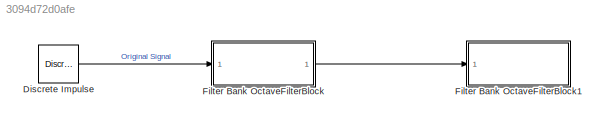
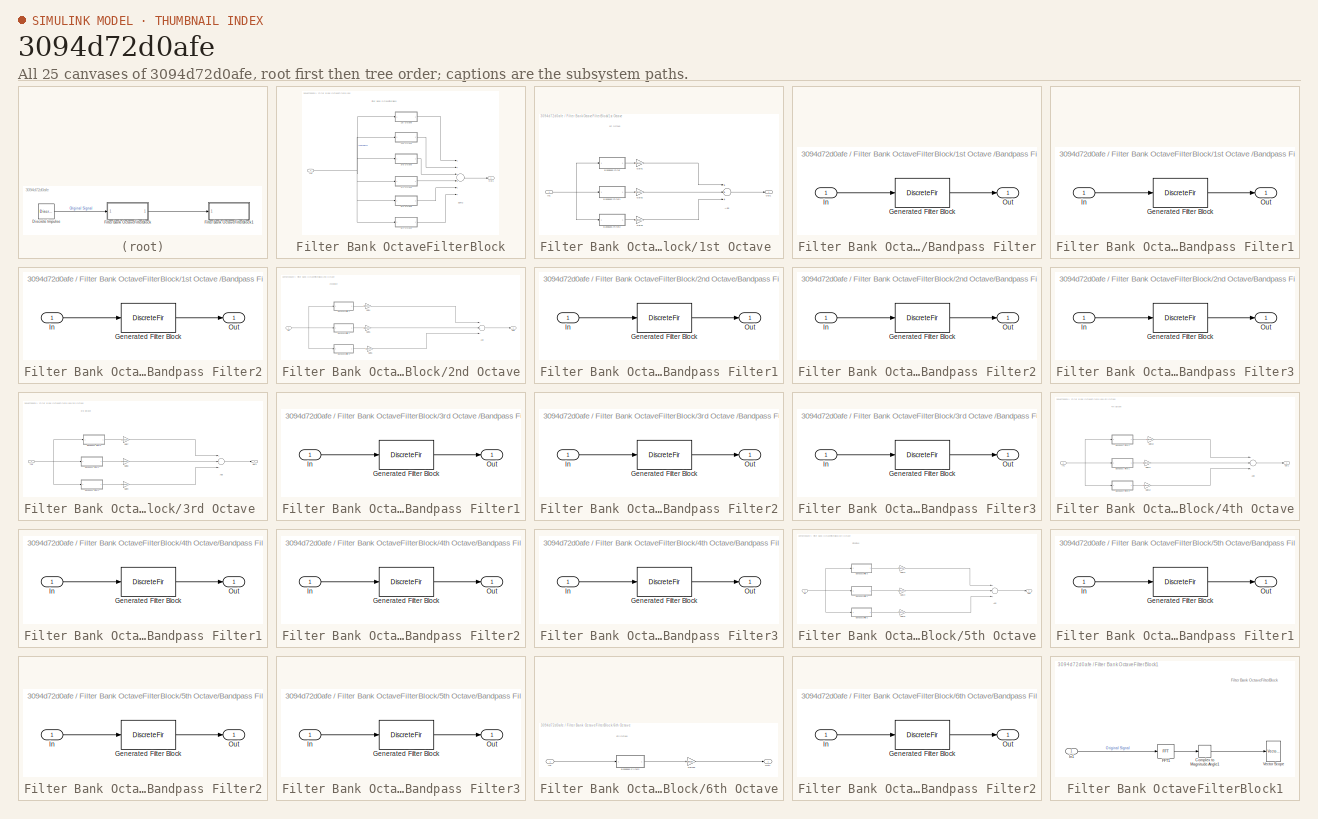
[diagram: thumbnail index - all 25 canvases of the model, root first then tree order]
MODEL slx_3094d72d0afe
KIND model
CONFIG AbsTol = auto
CONFIG EnableMultiTasking = off
CONFIG FixedStep = auto
CONFIG MaxStep = auto
CONFIG MinStep = auto
CONFIG RelTol = 1e-3
CONFIG SampleTimeConstraint = Unconstrained
CONFIG Solver = FixedStepDiscrete
CONFIG SolverName = FixedStepDiscrete
CONFIG StartTime = 0.0
CONFIG StopTime = 0.001
BLOCK [Reference] Discrete Impulse  REF=dspsrcs4/Discrete 
Impulse
  Ports = [0, 1]
  SourceBlock = dspsrcs4/Discrete \nImpulse
  SourceProductBaseCode = DS
  SourceProductName = DSP System Toolbox
  SourceType = Discrete Impulse
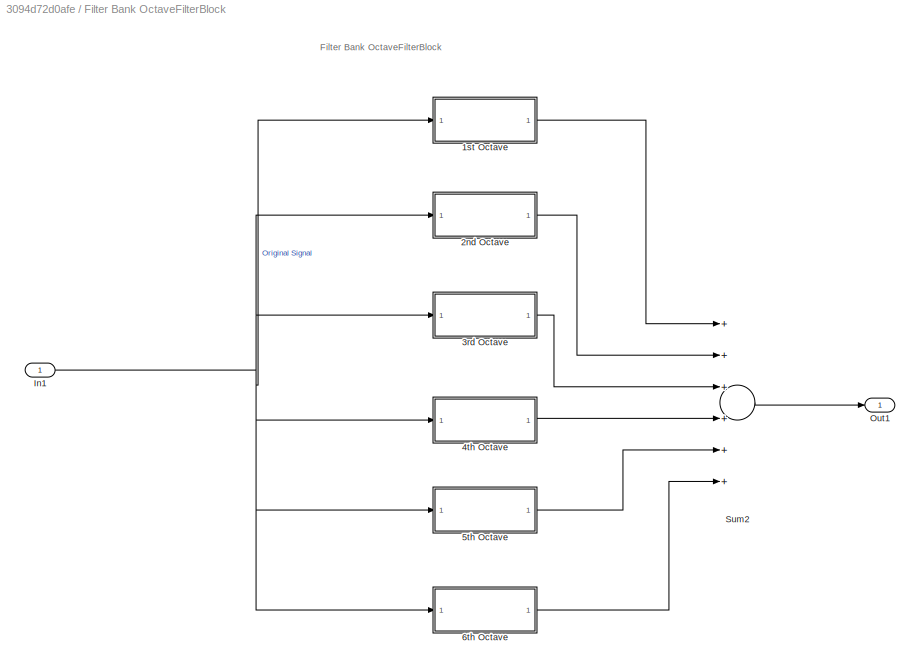
BLOCK [SubSystem] Filter Bank OctaveFilterBlock
  Ports = [1, 1]
  RequestExecContextInheritance = off
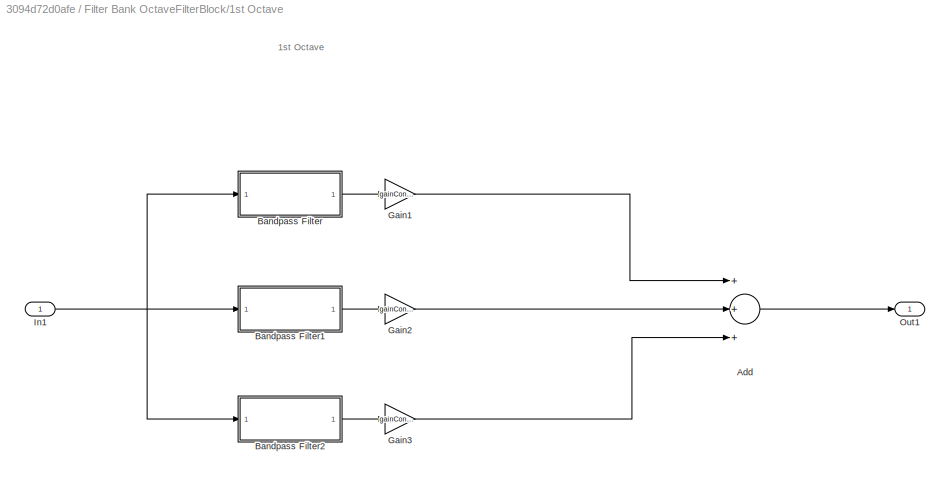
BLOCK [SubSystem] Filter Bank OctaveFilterBlock/1st Octave 
  Ports = [1, 1]
  RequestExecContextInheritance = off
BLOCK [Sum] Filter Bank OctaveFilterBlock/1st Octave /Add
  InputSameDT = off
  Inputs = +++
  OutDataTypeStr = Inherit: Inherit via internal rule
  Ports = [3, 1]
  SaturateOnIntegerOverflow = off
BLOCK [SubSystem] Filter Bank OctaveFilterBlock/1st Octave /Bandpass Filter
  CopyFcn = fdesignblkfcn(gcbh, {'CopyFcn'});
  DialogController = fdesignblkfcn
  InitFcn = fdesignblkfcn(gcbh, {'InitFcn'});
  Ports = [1, 1]
  RequestExecContextInheritance = off
  UserDataPersistent = on
BLOCK [DiscreteFir] Filter Bank OctaveFilterBlock/1st Octave /Bandpass Filter/Generated Filter Block
  Coefficients = [0.00069254263564703239 7.08332125616228079e-05 7.43338221660424489e-05 7.78019514310851305e-05 8.1313055894969587e-05 8.47676145299332306e-05 8.82427360820155573e-05 9.16321724960766058e-05 9.50132779449859897e-05 9.82780844645089513e-05 0.000101505416215626917 0.000104588272515063408 0.000107617215710334275 0.00011047625362861513 0.00011327190922524107 0.00011588720344087749 0.000118439063772244...<+18654ch>
  InputPortMap = u0
  InputProcessing = Columns as channels (frame based)
  OutputPortMap = o0
  Ports = [1, 1]
  Tag = BlockMethodSubSystem
BLOCK [Inport] Filter Bank OctaveFilterBlock/1st Octave /Bandpass Filter/In
  IconDisplay = Port number
BLOCK [Outport] Filter Bank OctaveFilterBlock/1st Octave /Bandpass Filter/Out
  IconDisplay = Port number
BLOCK [SubSystem] Filter Bank OctaveFilterBlock/1st Octave /Bandpass Filter1
  CopyFcn = fdesignblkfcn(gcbh, {'CopyFcn'});
  DialogController = fdesignblkfcn
  InitFcn = fdesignblkfcn(gcbh, {'InitFcn'});
  Ports = [1, 1]
  RequestExecContextInheritance = off
  UserDataPersistent = on
BLOCK [DiscreteFir] Filter Bank OctaveFilterBlock/1st Octave /Bandpass Filter1/Generated Filter Block
  Coefficients = [0.000700210960206121584 9.08999096462534753e-05 9.6493475997903649e-05 0.000102024349867572018 0.000107612579626240111 0.000113115900856586922 0.000118635157897549709 0.000123976371066557181 0.000129207962104145699 0.000134098413991073332 0.000138779649990945731 0.000143130230806684847 0.000147557040668118704 0.000152034630484060144 0.000156719067589813346 0.000158909825070414706 0.00016272600864...<+14679ch>
  InputPortMap = u0
  InputProcessing = Columns as channels (frame based)
  OutputPortMap = o0
  Ports = [1, 1]
  Tag = BlockMethodSubSystem
BLOCK [Inport] Filter Bank OctaveFilterBlock/1st Octave /Bandpass Filter1/In
  IconDisplay = Port number
BLOCK [Outport] Filter Bank OctaveFilterBlock/1st Octave /Bandpass Filter1/Out
  IconDisplay = Port number
BLOCK [SubSystem] Filter Bank OctaveFilterBlock/1st Octave /Bandpass Filter2
  CopyFcn = fdesignblkfcn(gcbh, {'CopyFcn'});
  DialogController = fdesignblkfcn
  InitFcn = fdesignblkfcn(gcbh, {'InitFcn'});
  Ports = [1, 1]
  RequestExecContextInheritance = off
  UserDataPersistent = on
BLOCK [DiscreteFir] Filter Bank OctaveFilterBlock/1st Octave /Bandpass Filter2/Generated Filter Block
  Coefficients = [0.000713660097633872091 0.000115378079070311895 0.000124420492702067165 0.000132921514305727926 0.000141825528954273874 0.000149953325599846326 0.000158294064529507727 0.000165704711463207925 0.000173323756779701372 0.000180030403143701659 0.000187013195553186145 0.000192811064822855397 0.000198418166362707149 0.000201884890277593231 0.000205783812253316437 0.000209381104477396698 0.0002105166716...<+11505ch>
  InputPortMap = u0
  InputProcessing = Columns as channels (frame based)
  OutputPortMap = o0
  Ports = [1, 1]
  Tag = BlockMethodSubSystem
BLOCK [Inport] Filter Bank OctaveFilterBlock/1st Octave /Bandpass Filter2/In
  IconDisplay = Port number
BLOCK [Outport] Filter Bank OctaveFilterBlock/1st Octave /Bandpass Filter2/Out
  IconDisplay = Port number
BLOCK [Gain] Filter Bank OctaveFilterBlock/1st Octave /Gain1
  Gain = gainConsts(1)
  OutDataTypeStr = Inherit: Inherit via internal rule
  ParamDataTypeStr = Inherit: Inherit via internal rule
  SaturateOnIntegerOverflow = off
BLOCK [Gain] Filter Bank OctaveFilterBlock/1st Octave /Gain2
  Gain = gainConsts(2)
  OutDataTypeStr = Inherit: Inherit via internal rule
  ParamDataTypeStr = Inherit: Inherit via internal rule
  SaturateOnIntegerOverflow = off
BLOCK [Gain] Filter Bank OctaveFilterBlock/1st Octave /Gain3
  Gain = gainConsts(3)
  OutDataTypeStr = Inherit: Inherit via internal rule
  ParamDataTypeStr = Inherit: Inherit via internal rule
  SaturateOnIntegerOverflow = off
BLOCK [Inport] Filter Bank OctaveFilterBlock/1st Octave /In1
  IconDisplay = Port number
BLOCK [Outport] Filter Bank OctaveFilterBlock/1st Octave /Out1
  IconDisplay = Port number
BLOCK [SubSystem] Filter Bank OctaveFilterBlock/2nd Octave
  Ports = [1, 1]
  RequestExecContextInheritance = off
BLOCK [Sum] Filter Bank OctaveFilterBlock/2nd Octave/Add
  InputSameDT = off
  Inputs = +++
  OutDataTypeStr = Inherit: Inherit via internal rule
  Ports = [3, 1]
  SaturateOnIntegerOverflow = off
BLOCK [SubSystem] Filter Bank OctaveFilterBlock/2nd Octave/Bandpass Filter1
  CopyFcn = fdesignblkfcn(gcbh, {'CopyFcn'});
  DialogController = fdesignblkfcn
  InitFcn = fdesignblkfcn(gcbh, {'InitFcn'});
  Ports = [1, 1]
  RequestExecContextInheritance = off
  UserDataPersistent = on
BLOCK [DiscreteFir] Filter Bank OctaveFilterBlock/2nd Octave/Bandpass Filter1/Generated Filter Block
  Coefficients = [0.000742134179395843971 0.000193440105430270923 0.000215971538485934848 0.000238094823972817142 0.000259596503362014626 0.00027989071616599015 0.000298678859460124843 0.000315340078940964279 0.000329544059457413739 0.000340645950367989426 0.000348345506686670553 0.000351991743241813592 0.000351332543792512528 0.000345703243024149301 0.000334876255142022104 0.000318164898069493837 0.00029536067892...<+7097ch>
  InputPortMap = u0
  InputProcessing = Columns as channels (frame based)
  OutputPortMap = o0
  Ports = [1, 1]
  Tag = BlockMethodSubSystem
BLOCK [Inport] Filter Bank OctaveFilterBlock/2nd Octave/Bandpass Filter1/In
  IconDisplay = Port number
BLOCK [Outport] Filter Bank OctaveFilterBlock/2nd Octave/Bandpass Filter1/Out
  IconDisplay = Port number
BLOCK [SubSystem] Filter Bank OctaveFilterBlock/2nd Octave/Bandpass Filter2
  CopyFcn = fdesignblkfcn(gcbh, {'CopyFcn'});
  DialogController = fdesignblkfcn
  InitFcn = fdesignblkfcn(gcbh, {'InitFcn'});
  Ports = [1, 1]
  RequestExecContextInheritance = off
  UserDataPersistent = on
BLOCK [DiscreteFir] Filter Bank OctaveFilterBlock/2nd Octave/Bandpass Filter2/Generated Filter Block
  Coefficients = [0.000725848166867236683 0.000149303145153493842 0.000163320505206527086 0.000177268500386278132 0.000190919069130600746 0.000204180363752326152 0.000216798059367720762 0.000228666516954461588 0.000239538083378910353 0.000249300727901250981 0.000257722298461788646 0.000264689509143923175 0.000269955982745259248 0.000273401873404388357 0.000274733767915407139 0.000273827996112659458 0.0002703804252...<+9087ch>
  InputPortMap = u0
  InputProcessing = Columns as channels (frame based)
  OutputPortMap = o0
  Ports = [1, 1]
  Tag = BlockMethodSubSystem
BLOCK [Inport] Filter Bank OctaveFilterBlock/2nd Octave/Bandpass Filter2/In
  IconDisplay = Port number
BLOCK [Outport] Filter Bank OctaveFilterBlock/2nd Octave/Bandpass Filter2/Out
  IconDisplay = Port number
BLOCK [SubSystem] Filter Bank OctaveFilterBlock/2nd Octave/Bandpass Filter3
  CopyFcn = fdesignblkfcn(gcbh, {'CopyFcn'});
  DialogController = fdesignblkfcn
  InitFcn = fdesignblkfcn(gcbh, {'InitFcn'});
  Ports = [1, 1]
  RequestExecContextInheritance = off
  UserDataPersistent = on
BLOCK [DiscreteFir] Filter Bank OctaveFilterBlock/2nd Octave/Bandpass Filter3/Generated Filter Block
  Coefficients = [0.000771480794195079336 0.00025192787376402976 0.000287358119804378748 0.000321543796994596927 0.000353629791679158588 0.000382362971119008582 0.000406738534979427695 0.000425425218057969685 0.000437351911760079106 0.000441133521365470998 0.000435706853850912398 0.000419676264177398556 0.00039211231972832944 0.000351789318209205597 0.000298109072813777917 0.000230228642914315012 0.000147996680517...<+5535ch>
  InputPortMap = u0
  InputProcessing = Columns as channels (frame based)
  OutputPortMap = o0
  Ports = [1, 1]
  Tag = BlockMethodSubSystem
BLOCK [Inport] Filter Bank OctaveFilterBlock/2nd Octave/Bandpass Filter3/In
  IconDisplay = Port number
BLOCK [Outport] Filter Bank OctaveFilterBlock/2nd Octave/Bandpass Filter3/Out
  IconDisplay = Port number
BLOCK [Gain] Filter Bank OctaveFilterBlock/2nd Octave/Gain4
  Gain = gainConsts(4)
  OutDataTypeStr = Inherit: Inherit via internal rule
  ParamDataTypeStr = Inherit: Inherit via internal rule
  SaturateOnIntegerOverflow = off
BLOCK [Gain] Filter Bank OctaveFilterBlock/2nd Octave/Gain5
  Gain = gainConsts(5)
  OutDataTypeStr = Inherit: Inherit via internal rule
  ParamDataTypeStr = Inherit: Inherit via internal rule
  SaturateOnIntegerOverflow = off
BLOCK [Gain] Filter Bank OctaveFilterBlock/2nd Octave/Gain6
  Gain = gainConsts(6)
  OutDataTypeStr = Inherit: Inherit via internal rule
  ParamDataTypeStr = Inherit: Inherit via internal rule
  SaturateOnIntegerOverflow = off
BLOCK [Inport] Filter Bank OctaveFilterBlock/2nd Octave/In1
  IconDisplay = Port number
BLOCK [Outport] Filter Bank OctaveFilterBlock/2nd Octave/Out1
  IconDisplay = Port number
BLOCK [SubSystem] Filter Bank OctaveFilterBlock/3rd Octave 
  Ports = [1, 1]
  RequestExecContextInheritance = off
BLOCK [Sum] Filter Bank OctaveFilterBlock/3rd Octave /Add
  InputSameDT = off
  Inputs = +++
  OutDataTypeStr = Inherit: Inherit via internal rule
  Ports = [3, 1]
  SaturateOnIntegerOverflow = off
BLOCK [SubSystem] Filter Bank OctaveFilterBlock/3rd Octave /Bandpass Filter1
  CopyFcn = fdesignblkfcn(gcbh, {'CopyFcn'});
  DialogController = fdesignblkfcn
  InitFcn = fdesignblkfcn(gcbh, {'InitFcn'});
  Ports = [1, 1]
  RequestExecContextInheritance = off
  UserDataPersistent = on
BLOCK [DiscreteFir] Filter Bank OctaveFilterBlock/3rd Octave /Bandpass Filter1/Generated Filter Block
  Coefficients = [0.000844529805605297537 0.000434474145270160228 0.000521970330597161048 0.00059981661422784131 0.000661211427830133824 0.000698200171238722153 0.000704092007714931687 0.000670377161148503716 0.000590133932091154866 0.000456798596009998638 0.000268376310929874153 1.95106375506972751e-05 -0.000288081880362676078 -0.000650533214135858365 -0.00106342815011038457 -0.00151566549996151037 -0.00199548134...<+3323ch>
  InputPortMap = u0
  InputProcessing = Columns as channels (frame based)
  OutputPortMap = o0
  Ports = [1, 1]
  Tag = BlockMethodSubSystem
BLOCK [Inport] Filter Bank OctaveFilterBlock/3rd Octave /Bandpass Filter1/In
  IconDisplay = Port number
BLOCK [Outport] Filter Bank OctaveFilterBlock/3rd Octave /Bandpass Filter1/Out
  IconDisplay = Port number
BLOCK [SubSystem] Filter Bank OctaveFilterBlock/3rd Octave /Bandpass Filter2
  CopyFcn = fdesignblkfcn(gcbh, {'CopyFcn'});
  DialogController = fdesignblkfcn
  InitFcn = fdesignblkfcn(gcbh, {'InitFcn'});
  Ports = [1, 1]
  RequestExecContextInheritance = off
  UserDataPersistent = on
BLOCK [DiscreteFir] Filter Bank OctaveFilterBlock/3rd Octave /Bandpass Filter2/Generated Filter Block
  Coefficients = [0.000613569567036898237 0.000297548180612830916 0.000345269266420602638 0.000378712193219345433 0.00039305365853324625 0.000384583668061130315 0.000351055855389396378 0.000292085770583024832 0.000209617251577713898 0.000107853452572361313 -6.67460616390183177e-06 -0.000125624195834608501 -0.000239441061853404736 -0.000338342328646290731 -0.000413169281211663345 -0.00045641312325707525 -0.00046304...<+3377ch>
  InputPortMap = u0
  InputProcessing = Columns as channels (frame based)
  OutputPortMap = o0
  Ports = [1, 1]
  Tag = BlockMethodSubSystem
BLOCK [Inport] Filter Bank OctaveFilterBlock/3rd Octave /Bandpass Filter2/In
  IconDisplay = Port number
BLOCK [Outport] Filter Bank OctaveFilterBlock/3rd Octave /Bandpass Filter2/Out
  IconDisplay = Port number
BLOCK [SubSystem] Filter Bank OctaveFilterBlock/3rd Octave /Bandpass Filter3
  CopyFcn = fdesignblkfcn(gcbh, {'CopyFcn'});
  DialogController = fdesignblkfcn
  InitFcn = fdesignblkfcn(gcbh, {'InitFcn'});
  Ports = [1, 1]
  RequestExecContextInheritance = off
  UserDataPersistent = on
BLOCK [DiscreteFir] Filter Bank OctaveFilterBlock/3rd Octave /Bandpass Filter3/Generated Filter Block
  Coefficients = [0.000804290502684113342 0.000329968746955946947 0.000385587548959871165 0.000437931361239749992 0.000484183216200477886 0.000521549418801320504 0.000546845896578521183 0.000557060515818461142 0.00054892668621296496 0.000519638016259670586 0.000466411798081320828 0.000387123745056590655 0.000279856806443186357 0.000143486795032023249 -2.26768397719826699e-05 -0.000218222801616095726 -0.00044198809...<+4293ch>
  InputPortMap = u0
  InputProcessing = Columns as channels (frame based)
  OutputPortMap = o0
  Ports = [1, 1]
  Tag = BlockMethodSubSystem
BLOCK [Inport] Filter Bank OctaveFilterBlock/3rd Octave /Bandpass Filter3/In
  IconDisplay = Port number
BLOCK [Outport] Filter Bank OctaveFilterBlock/3rd Octave /Bandpass Filter3/Out
  IconDisplay = Port number
BLOCK [Gain] Filter Bank OctaveFilterBlock/3rd Octave /Gain7
  Gain = gainConsts(7)
  OutDataTypeStr = Inherit: Inherit via internal rule
  ParamDataTypeStr = Inherit: Inherit via internal rule
  SaturateOnIntegerOverflow = off
BLOCK [Gain] Filter Bank OctaveFilterBlock/3rd Octave /Gain8
  Gain = gainConsts(8)
  OutDataTypeStr = Inherit: Inherit via internal rule
  ParamDataTypeStr = Inherit: Inherit via internal rule
  SaturateOnIntegerOverflow = off
BLOCK [Gain] Filter Bank OctaveFilterBlock/3rd Octave /Gain9
  Gain = gainConsts(9)
  OutDataTypeStr = Inherit: Inherit via internal rule
  ParamDataTypeStr = Inherit: Inherit via internal rule
  SaturateOnIntegerOverflow = off
BLOCK [Inport] Filter Bank OctaveFilterBlock/3rd Octave /In1
  IconDisplay = Port number
BLOCK [Outport] Filter Bank OctaveFilterBlock/3rd Octave /Out1
  IconDisplay = Port number
BLOCK [SubSystem] Filter Bank OctaveFilterBlock/4th Octave
  Ports = [1, 1]
  RequestExecContextInheritance = off
BLOCK [Sum] Filter Bank OctaveFilterBlock/4th Octave/Add
  InputSameDT = off
  Inputs = +++
  OutDataTypeStr = Inherit: Inherit via internal rule
  Ports = [3, 1]
  SaturateOnIntegerOverflow = off
BLOCK [SubSystem] Filter Bank OctaveFilterBlock/4th Octave/Bandpass Filter1
  CopyFcn = fdesignblkfcn(gcbh, {'CopyFcn'});
  DialogController = fdesignblkfcn
  InitFcn = fdesignblkfcn(gcbh, {'InitFcn'});
  Ports = [1, 1]
  RequestExecContextInheritance = off
  UserDataPersistent = on
BLOCK [DiscreteFir] Filter Bank OctaveFilterBlock/4th Octave/Bandpass Filter1/Generated Filter Block
  Coefficients = [0.000710536329578594235 0.000480231368416294668 0.000540923536368230007 0.000524201576661302224 0.00041851431816842925 0.000231560901313191141 -8.35020160617078832e-06 -0.000254900124502930551 -0.000453094722168828883 -0.000552258274331759807 -0.000521453451729783309 -0.000362971630165078558 -0.000121184341494637985 0.000117784174182406003 0.000236188702439771683 0.000106391569379987689 -0.000378...<+1959ch>
  InputPortMap = u0
  InputProcessing = Columns as channels (frame based)
  OutputPortMap = o0
  Ports = [1, 1]
  Tag = BlockMethodSubSystem
BLOCK [Inport] Filter Bank OctaveFilterBlock/4th Octave/Bandpass Filter1/In
  IconDisplay = Port number
BLOCK [Outport] Filter Bank OctaveFilterBlock/4th Octave/Bandpass Filter1/Out
  IconDisplay = Port number
BLOCK [SubSystem] Filter Bank OctaveFilterBlock/4th Octave/Bandpass Filter2
  CopyFcn = fdesignblkfcn(gcbh, {'CopyFcn'});
  DialogController = fdesignblkfcn
  InitFcn = fdesignblkfcn(gcbh, {'InitFcn'});
  Ports = [1, 1]
  RequestExecContextInheritance = off
  UserDataPersistent = on
BLOCK [DiscreteFir] Filter Bank OctaveFilterBlock/4th Octave/Bandpass Filter2/Generated Filter Block
  Coefficients = [0.000660063968007304318 0.000362664224633989587 0.000413631548370213087 0.000430536325834472277 0.000405431575467652197 0.000335674548340531779 0.000224709284416333387 8.28061432437832422e-05 -7.39506217473550118e-05 -0.000224860365294900298 -0.000347996935854789761 -0.000422872953299833576 -0.000435264840810774126 -0.000380142447306632144 -0.00026540706276369561 -0.000112247838753902607 4.466708...<+2561ch>
  InputPortMap = u0
  InputProcessing = Columns as channels (frame based)
  OutputPortMap = o0
  Ports = [1, 1]
  Tag = BlockMethodSubSystem
BLOCK [Inport] Filter Bank OctaveFilterBlock/4th Octave/Bandpass Filter2/In
  IconDisplay = Port number
BLOCK [Outport] Filter Bank OctaveFilterBlock/4th Octave/Bandpass Filter2/Out
  IconDisplay = Port number
BLOCK [SubSystem] Filter Bank OctaveFilterBlock/4th Octave/Bandpass Filter3
  CopyFcn = fdesignblkfcn(gcbh, {'CopyFcn'});
  DialogController = fdesignblkfcn
  InitFcn = fdesignblkfcn(gcbh, {'InitFcn'});
  Ports = [1, 1]
  RequestExecContextInheritance = off
  UserDataPersistent = on
BLOCK [DiscreteFir] Filter Bank OctaveFilterBlock/4th Octave/Bandpass Filter3/Generated Filter Block
  Coefficients = [0.000787331502509106213 0.000712646524578959312 0.00080733263120094656 0.000716818685482715871 0.000421733975543355823 -2.62032712578797442e-05 -0.000508755252751254446 -0.000871717056666874144 -0.000981365149126111084 -0.000786668501354213594 -0.000368661076257909709 5.08089081615513169e-05 0.000152109336404681906 -0.000380441370676968475 -0.00172796032965351299 -0.00380805836267096706 -0.006202...<+1501ch>
  InputPortMap = u0
  InputProcessing = Columns as channels (frame based)
  OutputPortMap = o0
  Ports = [1, 1]
  Tag = BlockMethodSubSystem
BLOCK [Inport] Filter Bank OctaveFilterBlock/4th Octave/Bandpass Filter3/In
  IconDisplay = Port number
BLOCK [Outport] Filter Bank OctaveFilterBlock/4th Octave/Bandpass Filter3/Out
  IconDisplay = Port number
BLOCK [Gain] Filter Bank OctaveFilterBlock/4th Octave/Gain10
  Gain = gainConsts(10)
  OutDataTypeStr = Inherit: Inherit via internal rule
  ParamDataTypeStr = Inherit: Inherit via internal rule
  SaturateOnIntegerOverflow = off
BLOCK [Gain] Filter Bank OctaveFilterBlock/4th Octave/Gain11
  Gain = gainConsts(11)
  OutDataTypeStr = Inherit: Inherit via internal rule
  ParamDataTypeStr = Inherit: Inherit via internal rule
  SaturateOnIntegerOverflow = off
BLOCK [Gain] Filter Bank OctaveFilterBlock/4th Octave/Gain12
  Gain = gainConsts(12)
  OutDataTypeStr = Inherit: Inherit via internal rule
  ParamDataTypeStr = Inherit: Inherit via internal rule
  SaturateOnIntegerOverflow = off
BLOCK [Inport] Filter Bank OctaveFilterBlock/4th Octave/In1
  IconDisplay = Port number
BLOCK [Outport] Filter Bank OctaveFilterBlock/4th Octave/Out1
  IconDisplay = Port number
BLOCK [SubSystem] Filter Bank OctaveFilterBlock/5th Octave
  Ports = [1, 1]
  RequestExecContextInheritance = off
BLOCK [Sum] Filter Bank OctaveFilterBlock/5th Octave/Add
  InputSameDT = off
  Inputs = +++
  OutDataTypeStr = Inherit: Inherit via internal rule
  Ports = [3, 1]
  SaturateOnIntegerOverflow = off
BLOCK [SubSystem] Filter Bank OctaveFilterBlock/5th Octave/Bandpass Filter1
  CopyFcn = fdesignblkfcn(gcbh, {'CopyFcn'});
  DialogController = fdesignblkfcn
  InitFcn = fdesignblkfcn(gcbh, {'InitFcn'});
  Ports = [1, 1]
  RequestExecContextInheritance = off
  UserDataPersistent = on
BLOCK [DiscreteFir] Filter Bank OctaveFilterBlock/5th Octave/Bandpass Filter1/Generated Filter Block
  Coefficients = [0.00104091797483246533 0.00117292590140649351 0.000889197178867677713 -5.47558220565934445e-05 -0.00105581072468561633 -0.00126993734640972193 -0.000460463792976197658 0.00036483088903188453 -0.000689227236600041255 -0.0048545614468881405 -0.0108429377827189734 -0.0142790649112275684 -0.00961648174968800055 0.00589001005015481714 0.0284539945020862994 0.047307034740027322 0.0491107476093929143 0....<+774ch>
  InputPortMap = u0
  InputProcessing = Columns as channels (frame based)
  OutputPortMap = o0
  Ports = [1, 1]
  Tag = BlockMethodSubSystem
BLOCK [Inport] Filter Bank OctaveFilterBlock/5th Octave/Bandpass Filter1/In
  IconDisplay = Port number
BLOCK [Outport] Filter Bank OctaveFilterBlock/5th Octave/Bandpass Filter1/Out
  IconDisplay = Port number
BLOCK [SubSystem] Filter Bank OctaveFilterBlock/5th Octave/Bandpass Filter2
  CopyFcn = fdesignblkfcn(gcbh, {'CopyFcn'});
  DialogController = fdesignblkfcn
  InitFcn = fdesignblkfcn(gcbh, {'InitFcn'});
  Ports = [1, 1]
  RequestExecContextInheritance = off
  UserDataPersistent = on
BLOCK [DiscreteFir] Filter Bank OctaveFilterBlock/5th Octave/Bandpass Filter2/Generated Filter Block
  Coefficients = [0.00135561766927554269 0.00183641062578695819 0.000895657920912027632 -0.00128416145068868085 -0.00248790199441557966 -0.00122421320096873345 0.000195133979586037236 -0.00307163487481588093 -0.0117559139584707019 -0.0170872868500709617 -0.0056427404214003489 0.025640733265371949 0.057950634843356684 0.0588079105062277938 0.00991002804479382444 -0.068005754341698782 -0.120597627195966339 -0.099353...<+538ch>
  InputPortMap = u0
  InputProcessing = Columns as channels (frame based)
  OutputPortMap = o0
  Ports = [1, 1]
  Tag = BlockMethodSubSystem
BLOCK [Inport] Filter Bank OctaveFilterBlock/5th Octave/Bandpass Filter2/In
  IconDisplay = Port number
BLOCK [Outport] Filter Bank OctaveFilterBlock/5th Octave/Bandpass Filter2/Out
  IconDisplay = Port number
BLOCK [SubSystem] Filter Bank OctaveFilterBlock/5th Octave/Bandpass Filter3
  CopyFcn = fdesignblkfcn(gcbh, {'CopyFcn'});
  DialogController = fdesignblkfcn
  InitFcn = fdesignblkfcn(gcbh, {'InitFcn'});
  Ports = [1, 1]
  RequestExecContextInheritance = off
  UserDataPersistent = on
BLOCK [DiscreteFir] Filter Bank OctaveFilterBlock/5th Octave/Bandpass Filter3/Generated Filter Block
  Coefficients = [0.000884582308095480194 0.000870780307095067076 0.000848012585339726109 0.000462698932146210962 -0.000171370288053247658 -0.000762173546555128516 -0.000971002272625588877 -0.000645084665005441534 -6.26625629828922968e-06 0.000322456926781320406 -0.000441945506372254252 -0.00278782244015426083 -0.00641748539213879421 -0.00999905474017598675 -0.0113917109482768175 -0.00840857719289226507 9.01672573...<+1101ch>
  InputPortMap = u0
  InputProcessing = Columns as channels (frame based)
  OutputPortMap = o0
  Ports = [1, 1]
  Tag = BlockMethodSubSystem
BLOCK [Inport] Filter Bank OctaveFilterBlock/5th Octave/Bandpass Filter3/In
  IconDisplay = Port number
BLOCK [Outport] Filter Bank OctaveFilterBlock/5th Octave/Bandpass Filter3/Out
  IconDisplay = Port number
BLOCK [Gain] Filter Bank OctaveFilterBlock/5th Octave/Gain13 
  Gain = gainConsts(13)
  OutDataTypeStr = Inherit: Inherit via internal rule
  ParamDataTypeStr = Inherit: Inherit via internal rule
  SaturateOnIntegerOverflow = off
BLOCK [Gain] Filter Bank OctaveFilterBlock/5th Octave/Gain14
  Gain = gainConsts(14)
  OutDataTypeStr = Inherit: Inherit via internal rule
  ParamDataTypeStr = Inherit: Inherit via internal rule
  SaturateOnIntegerOverflow = off
BLOCK [Gain] Filter Bank OctaveFilterBlock/5th Octave/Gain15
  Gain = gainConsts(15)
  OutDataTypeStr = Inherit: Inherit via internal rule
  ParamDataTypeStr = Inherit: Inherit via internal rule
  SaturateOnIntegerOverflow = off
BLOCK [Inport] Filter Bank OctaveFilterBlock/5th Octave/In1
  IconDisplay = Port number
BLOCK [Outport] Filter Bank OctaveFilterBlock/5th Octave/Out1
  IconDisplay = Port number
BLOCK [SubSystem] Filter Bank OctaveFilterBlock/6th Octave
  Ports = [1, 1]
  RequestExecContextInheritance = off
BLOCK [SubSystem] Filter Bank OctaveFilterBlock/6th Octave/Bandpass Filter2
  CopyFcn = fdesignblkfcn(gcbh, {'CopyFcn'});
  DialogController = fdesignblkfcn
  InitFcn = fdesignblkfcn(gcbh, {'InitFcn'});
  Ports = [1, 1]
  RequestExecContextInheritance = off
  UserDataPersistent = on
BLOCK [DiscreteFir] Filter Bank OctaveFilterBlock/6th Octave/Bandpass Filter2/Generated Filter Block
  Coefficients = [0.00200608391046752307 0.00296182112284697078 -2.76446930316827056e-05 -0.00436306198413185988 -0.00343045138005433755 8.10391022939021302e-05 -0.00608795834538759014 -0.0189346990499320855 -0.00866814362833929174 0.0401795757156851105 0.0800848562720484908 0.0366037142511605532 -0.0830799022041095736 -0.157075771006374071 -0.0772702686389817872 0.100224558916550924 0.193113651985695661 0.1002245...<+360ch>
  InputPortMap = u0
  InputProcessing = Columns as channels (frame based)
  OutputPortMap = o0
  Ports = [1, 1]
  Tag = BlockMethodSubSystem
BLOCK [Inport] Filter Bank OctaveFilterBlock/6th Octave/Bandpass Filter2/In
  IconDisplay = Port number
BLOCK [Outport] Filter Bank OctaveFilterBlock/6th Octave/Bandpass Filter2/Out
  IconDisplay = Port number
BLOCK [Gain] Filter Bank OctaveFilterBlock/6th Octave/Gain16
  Gain = gainConsts(16)
  OutDataTypeStr = Inherit: Inherit via internal rule
  ParamDataTypeStr = Inherit: Inherit via internal rule
  SaturateOnIntegerOverflow = off
BLOCK [Inport] Filter Bank OctaveFilterBlock/6th Octave/In1
  IconDisplay = Port number
BLOCK [Outport] Filter Bank OctaveFilterBlock/6th Octave/Out1
  IconDisplay = Port number
BLOCK [Inport] Filter Bank OctaveFilterBlock/In1
  IconDisplay = Port number
BLOCK [Outport] Filter Bank OctaveFilterBlock/Out1
  IconDisplay = Port number
BLOCK [Sum] Filter Bank OctaveFilterBlock/Sum2
  InputSameDT = off
  Inputs = ++++++
  OutDataTypeStr = Inherit: Inherit via internal rule
  Ports = [6, 1]
  SaturateOnIntegerOverflow = off
BLOCK [SubSystem] Filter Bank OctaveFilterBlock1
  Ports = [1]
  RequestExecContextInheritance = off
BLOCK [ComplexToMagnitudeAngle] Filter Bank OctaveFilterBlock1/Complex to Magnitude-Angle1
  Output = Magnitude
  Ports = [1, 1]
BLOCK [Reference] Filter Bank OctaveFilterBlock1/FFT1  REF=dspxfrm3/FFT
  Ports = [1, 1]
  SourceBlock = dspxfrm3/FFT
  SourceProductBaseCode = DS
  SourceProductName = DSP System Toolbox
  SourceType = FFT
BLOCK [Inport] Filter Bank OctaveFilterBlock1/In1
  IconDisplay = Port number
BLOCK [Reference] Filter Bank OctaveFilterBlock1/Vector Scope  REF=dspobslib/Vector
Scope
  Ports = [1]
  SourceBlock = dspobslib/Vector\nScope
  SourceProductBaseCode = DS
  SourceProductName = DSP System Toolbox
  SourceType = Vector Scope
ANNOTATION Filter Bank OctaveFilterBlock: Filter Bank OctaveFilterBlock
ANNOTATION Filter Bank OctaveFilterBlock/1st Octave : 1st Octave
ANNOTATION Filter Bank OctaveFilterBlock/2nd Octave: 2nd Octave
ANNOTATION Filter Bank OctaveFilterBlock/3rd Octave : 3rd Octave
ANNOTATION Filter Bank OctaveFilterBlock/4th Octave: 4th Octave
ANNOTATION Filter Bank OctaveFilterBlock/5th Octave: 5th Octave
ANNOTATION Filter Bank OctaveFilterBlock/6th Octave: 6th Octave
ANNOTATION Filter Bank OctaveFilterBlock1: Filter Bank OctaveFilterBlock
LINE Discrete Impulse:1 -> Filter Bank OctaveFilterBlock:1
LINE Filter Bank OctaveFilterBlock/1st Octave /Add:1 -> Filter Bank OctaveFilterBlock/1st Octave /Out1:1
LINE Filter Bank OctaveFilterBlock/1st Octave /Bandpass Filter1:1 -> Filter Bank OctaveFilterBlock/1st Octave /Gain2:1
LINE Filter Bank OctaveFilterBlock/1st Octave /Bandpass Filter2:1 -> Filter Bank OctaveFilterBlock/1st Octave /Gain3:1
LINE Filter Bank OctaveFilterBlock/1st Octave /Bandpass Filter:1 -> Filter Bank OctaveFilterBlock/1st Octave /Gain1:1
LINE Filter Bank OctaveFilterBlock/1st Octave /Gain1:1 -> Filter Bank OctaveFilterBlock/1st Octave /Add:1
LINE Filter Bank OctaveFilterBlock/1st Octave /Gain2:1 -> Filter Bank OctaveFilterBlock/1st Octave /Add:2
LINE Filter Bank OctaveFilterBlock/1st Octave /Gain3:1 -> Filter Bank OctaveFilterBlock/1st Octave /Add:3
NET Filter Bank OctaveFilterBlock/1st Octave /In1:1 -> Filter Bank OctaveFilterBlock/1st Octave /Bandpass Filter1:1, Filter Bank OctaveFilterBlock/1st Octave /Bandpass Filter2:1, Filter Bank OctaveFilterBlock/1st Octave /Bandpass Filter:1
LINE Filter Bank OctaveFilterBlock/1st Octave :1 -> Filter Bank OctaveFilterBlock/Sum2:1
LINE Filter Bank OctaveFilterBlock/2nd Octave/Add:1 -> Filter Bank OctaveFilterBlock/2nd Octave/Out1:1
LINE Filter Bank OctaveFilterBlock/2nd Octave/Bandpass Filter1:1 -> Filter Bank OctaveFilterBlock/2nd Octave/Gain5:1
LINE Filter Bank OctaveFilterBlock/2nd Octave/Bandpass Filter2:1 -> Filter Bank OctaveFilterBlock/2nd Octave/Gain4:1
LINE Filter Bank OctaveFilterBlock/2nd Octave/Bandpass Filter3:1 -> Filter Bank OctaveFilterBlock/2nd Octave/Gain6:1
LINE Filter Bank OctaveFilterBlock/2nd Octave/Gain4:1 -> Filter Bank OctaveFilterBlock/2nd Octave/Add:1
LINE Filter Bank OctaveFilterBlock/2nd Octave/Gain5:1 -> Filter Bank OctaveFilterBlock/2nd Octave/Add:2
LINE Filter Bank OctaveFilterBlock/2nd Octave/Gain6:1 -> Filter Bank OctaveFilterBlock/2nd Octave/Add:3
NET Filter Bank OctaveFilterBlock/2nd Octave/In1:1 -> Filter Bank OctaveFilterBlock/2nd Octave/Bandpass Filter1:1, Filter Bank OctaveFilterBlock/2nd Octave/Bandpass Filter2:1, Filter Bank OctaveFilterBlock/2nd Octave/Bandpass Filter3:1
LINE Filter Bank OctaveFilterBlock/2nd Octave:1 -> Filter Bank OctaveFilterBlock/Sum2:2
LINE Filter Bank OctaveFilterBlock/3rd Octave /Add:1 -> Filter Bank OctaveFilterBlock/3rd Octave /Out1:1
LINE Filter Bank OctaveFilterBlock/3rd Octave /Bandpass Filter1:1 -> Filter Bank OctaveFilterBlock/3rd Octave /Gain8:1
LINE Filter Bank OctaveFilterBlock/3rd Octave /Bandpass Filter2:1 -> Filter Bank OctaveFilterBlock/3rd Octave /Gain9:1
LINE Filter Bank OctaveFilterBlock/3rd Octave /Bandpass Filter3:1 -> Filter Bank OctaveFilterBlock/3rd Octave /Gain7:1
LINE Filter Bank OctaveFilterBlock/3rd Octave /Gain7:1 -> Filter Bank OctaveFilterBlock/3rd Octave /Add:1
LINE Filter Bank OctaveFilterBlock/3rd Octave /Gain8:1 -> Filter Bank OctaveFilterBlock/3rd Octave /Add:2
LINE Filter Bank OctaveFilterBlock/3rd Octave /Gain9:1 -> Filter Bank OctaveFilterBlock/3rd Octave /Add:3
NET Filter Bank OctaveFilterBlock/3rd Octave /In1:1 -> Filter Bank OctaveFilterBlock/3rd Octave /Bandpass Filter1:1, Filter Bank OctaveFilterBlock/3rd Octave /Bandpass Filter2:1, Filter Bank OctaveFilterBlock/3rd Octave /Bandpass Filter3:1
LINE Filter Bank OctaveFilterBlock/3rd Octave :1 -> Filter Bank OctaveFilterBlock/Sum2:3
LINE Filter Bank OctaveFilterBlock/4th Octave/Add:1 -> Filter Bank OctaveFilterBlock/4th Octave/Out1:1
LINE Filter Bank OctaveFilterBlock/4th Octave/Bandpass Filter1:1 -> Filter Bank OctaveFilterBlock/4th Octave/Gain11:1
LINE Filter Bank OctaveFilterBlock/4th Octave/Bandpass Filter2:1 -> Filter Bank OctaveFilterBlock/4th Octave/Gain10:1
LINE Filter Bank OctaveFilterBlock/4th Octave/Bandpass Filter3:1 -> Filter Bank OctaveFilterBlock/4th Octave/Gain12:1
LINE Filter Bank OctaveFilterBlock/4th Octave/Gain10:1 -> Filter Bank OctaveFilterBlock/4th Octave/Add:1
LINE Filter Bank OctaveFilterBlock/4th Octave/Gain11:1 -> Filter Bank OctaveFilterBlock/4th Octave/Add:2
LINE Filter Bank OctaveFilterBlock/4th Octave/Gain12:1 -> Filter Bank OctaveFilterBlock/4th Octave/Add:3
NET Filter Bank OctaveFilterBlock/4th Octave/In1:1 -> Filter Bank OctaveFilterBlock/4th Octave/Bandpass Filter1:1, Filter Bank OctaveFilterBlock/4th Octave/Bandpass Filter2:1, Filter Bank OctaveFilterBlock/4th Octave/Bandpass Filter3:1
LINE Filter Bank OctaveFilterBlock/4th Octave:1 -> Filter Bank OctaveFilterBlock/Sum2:4
LINE Filter Bank OctaveFilterBlock/5th Octave/Add:1 -> Filter Bank OctaveFilterBlock/5th Octave/Out1:1
LINE Filter Bank OctaveFilterBlock/5th Octave/Bandpass Filter1:1 -> Filter Bank OctaveFilterBlock/5th Octave/Gain14:1
LINE Filter Bank OctaveFilterBlock/5th Octave/Bandpass Filter2:1 -> Filter Bank OctaveFilterBlock/5th Octave/Gain15:1
LINE Filter Bank OctaveFilterBlock/5th Octave/Bandpass Filter3:1 -> Filter Bank OctaveFilterBlock/5th Octave/Gain13 :1
LINE Filter Bank OctaveFilterBlock/5th Octave/Gain13 :1 -> Filter Bank OctaveFilterBlock/5th Octave/Add:1
LINE Filter Bank OctaveFilterBlock/5th Octave/Gain14:1 -> Filter Bank OctaveFilterBlock/5th Octave/Add:2
LINE Filter Bank OctaveFilterBlock/5th Octave/Gain15:1 -> Filter Bank OctaveFilterBlock/5th Octave/Add:3
NET Filter Bank OctaveFilterBlock/5th Octave/In1:1 -> Filter Bank OctaveFilterBlock/5th Octave/Bandpass Filter1:1, Filter Bank OctaveFilterBlock/5th Octave/Bandpass Filter2:1, Filter Bank OctaveFilterBlock/5th Octave/Bandpass Filter3:1
LINE Filter Bank OctaveFilterBlock/5th Octave:1 -> Filter Bank OctaveFilterBlock/Sum2:5
LINE Filter Bank OctaveFilterBlock/6th Octave/Bandpass Filter2:1 -> Filter Bank OctaveFilterBlock/6th Octave/Gain16:1
LINE Filter Bank OctaveFilterBlock/6th Octave/Gain16:1 -> Filter Bank OctaveFilterBlock/6th Octave/Out1:1
LINE Filter Bank OctaveFilterBlock/6th Octave/In1:1 -> Filter Bank OctaveFilterBlock/6th Octave/Bandpass Filter2:1
LINE Filter Bank OctaveFilterBlock/6th Octave:1 -> Filter Bank OctaveFilterBlock/Sum2:6
NET Filter Bank OctaveFilterBlock/In1:1 -> Filter Bank OctaveFilterBlock/1st Octave :1, Filter Bank OctaveFilterBlock/2nd Octave:1, Filter Bank OctaveFilterBlock/3rd Octave :1, Filter Bank OctaveFilterBlock/4th Octave:1, Filter Bank OctaveFilterBlock/5th Octave:1, Filter Bank OctaveFilterBlock/6th Octave:1
LINE Filter Bank OctaveFilterBlock/Sum2:1 -> Filter Bank OctaveFilterBlock/Out1:1
LINE Filter Bank OctaveFilterBlock1/Complex to Magnitude-Angle1:1 -> Filter Bank OctaveFilterBlock1/Vector Scope:1
LINE Filter Bank OctaveFilterBlock1/FFT1:1 -> Filter Bank OctaveFilterBlock1/Complex to Magnitude-Angle1:1
LINE Filter Bank OctaveFilterBlock1/In1:1 -> Filter Bank OctaveFilterBlock1/FFT1:1
LINE Filter Bank OctaveFilterBlock:1 -> Filter Bank OctaveFilterBlock1:1
note: NET lines group one-source signal fan-out (src -> all destinations, sorted); 1:1 wires keep LINE
